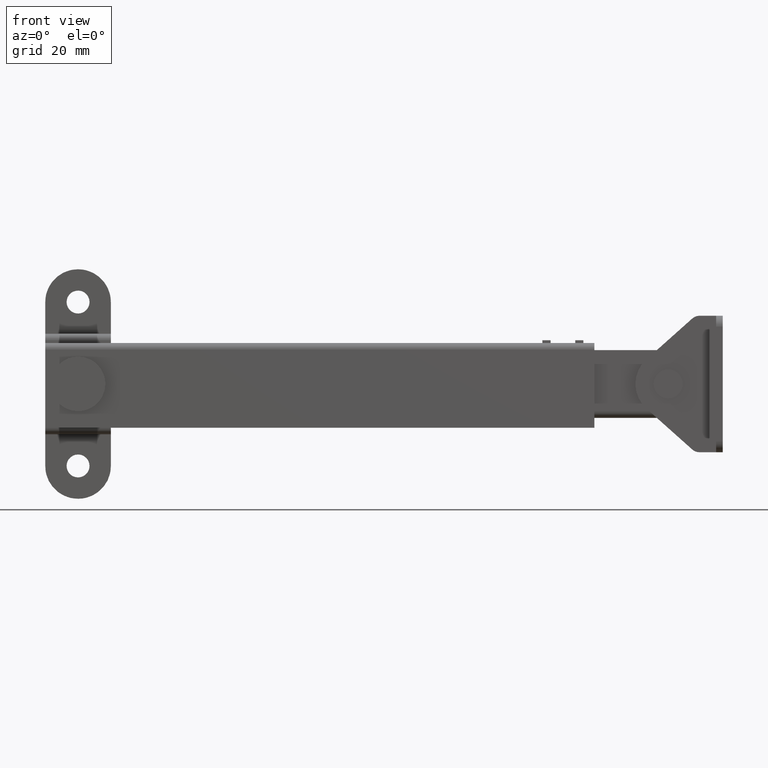
[diagram: clean part render]
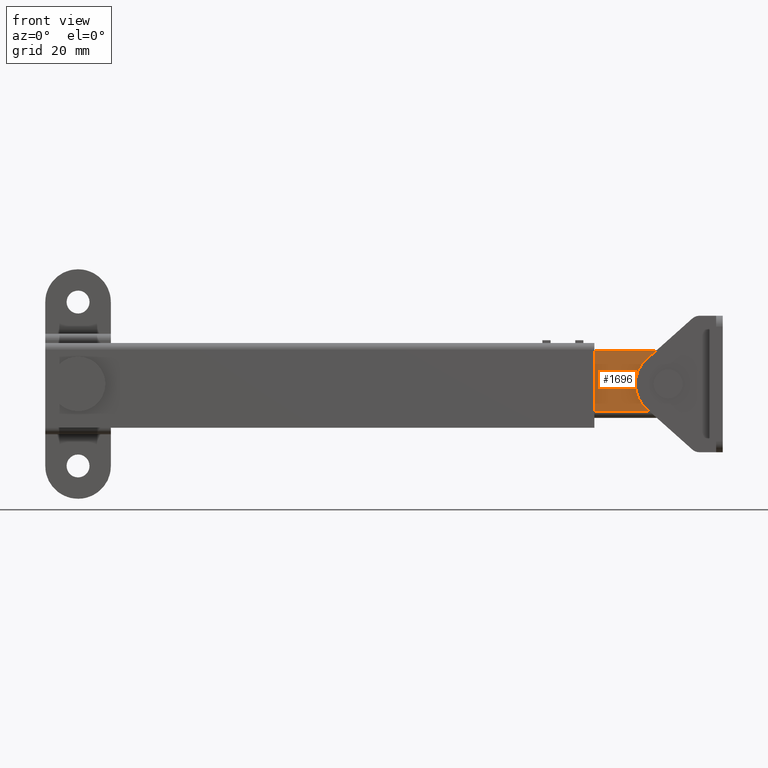
[diagram: same view with one face highlighted and labeled with its STEP entity id]
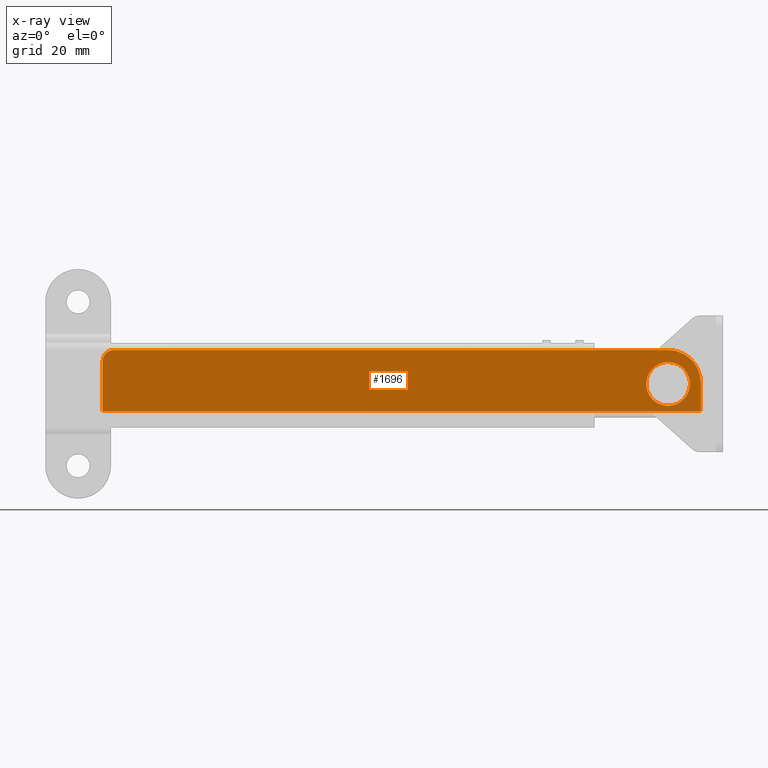
[diagram: x-ray of the same camera — body ghosted, the highlighted face saturated]
A machine part, front view. The second image highlights one B-rep face of the part: STEP entity #1696.
The next image is the same camera in x-ray: the body ghosted, the highlighted face saturated — about 0% of this face is hidden behind the body in this view.
In plain terms, the highlighted face is a freeform B-spline surface patch.
Its self-contained STEP definition (entity closure, byte-faithful):
#1172=CARTESIAN_POINT('',(105.196363191707410,-14.449999999497891,-2.853001444244294));
#1173=VERTEX_POINT('',#1172);
#1179=CARTESIAN_POINT('',(107.999999999930200,-14.449999999496340,-4.000000000000147));
#1180=VERTEX_POINT('',#1179);
#1181=CARTESIAN_POINT('',(107.999999999930200,-14.449999999496340,-4.000000000000147));
#1182=CARTESIAN_POINT('',(107.498296084908900,-14.449999999496340,-4.000496340017977));
#1183=CARTESIAN_POINT('',(106.819075022954390,-14.449999999496519,-3.870467968756956));
#1184=CARTESIAN_POINT('',(105.881379017804600,-14.449999999497109,-3.425499268076557));
#1185=CARTESIAN_POINT('',(105.450185609992200,-14.449999999497560,-3.102612188243431));
#1186=CARTESIAN_POINT('',(105.196363191707410,-14.449999999497891,-2.853001444244294));
#1187=B_SPLINE_CURVE_WITH_KNOTS('',3,(#1181,#1182,#1183,#1184,#1185,#1186),.UNSPECIFIED.,.F.,.U.,(4,1,1,4),(0.000000043175039,1.504836897816030,2.038774846942117,3.106705034949995),.UNSPECIFIED.);
#1188=EDGE_CURVE('',#1180,#1173,#1187,.T.);
#1190=CARTESIAN_POINT('',(111.999999999930100,-14.449999999501760,-0.000001703618977));
#1191=VERTEX_POINT('',#1190);
#1192=CARTESIAN_POINT('',(111.999999999930100,-14.449999999501760,-0.000001703618977));
#1193=CARTESIAN_POINT('',(112.000316804414690,-14.449999999501120,-0.474558039970925));
#1194=CARTESIAN_POINT('',(111.864503673738000,-14.449999999500079,-1.226991903442209));
#1195=CARTESIAN_POINT('',(111.455091981774000,-14.449999999499010,-2.052368853477777));
#1196=CARTESIAN_POINT('',(110.946293289229700,-14.449999999498001,-2.756660197472446));
#1197=CARTESIAN_POINT('',(110.213879917131810,-14.449999999497170,-3.404338692033086));
#1198=CARTESIAN_POINT('',(109.128953474489900,-14.449999999496480,-3.893018353150987));
#1199=CARTESIAN_POINT('',(108.376343576523200,-14.449999999496340,-4.000119231410559));
#1200=CARTESIAN_POINT('',(107.999999999930200,-14.449999999496340,-4.000000000000147));
#1201=B_SPLINE_CURVE_WITH_KNOTS('',3,(#1192,#1193,#1194,#1195,#1196,#1197,#1198,#1199,#1200),.UNSPECIFIED.,.F.,.U.,(4,1,1,1,1,1,4),(0.000000170135317,1.423541254048411,2.258057103421657,2.748937520032123,4.025167614685776,5.154212572191438,6.283223771324277),.UNSPECIFIED.);
#1202=EDGE_CURVE('',#1191,#1180,#1201,.T.);
#1204=CARTESIAN_POINT('',(110.803636808153000,-14.449999999505630,2.853001444244524));
#1205=VERTEX_POINT('',#1204);
#1206=CARTESIAN_POINT('',(110.803636808153000,-14.449999999505630,2.853001444244524));
#1207=CARTESIAN_POINT('',(111.027856178113100,-14.449999999505330,2.632705722643657));
#1208=CARTESIAN_POINT('',(111.486748500597400,-14.449999999504559,2.061022494549208));
#1209=CARTESIAN_POINT('',(111.907239514906390,-14.449999999503220,1.075410280752601));
#1210=CARTESIAN_POINT('',(112.000048903088100,-14.449999999502239,0.330879112631419));
#1211=CARTESIAN_POINT('',(111.999999999930100,-14.449999999501760,-0.000001703618977));
#1212=B_SPLINE_CURVE_WITH_KNOTS('',3,(#1206,#1207,#1208,#1209,#1210,#1211),.UNSPECIFIED.,.F.,.U.,(4,1,1,4),(0.000000042808867,0.943031683327311,2.183852043263301,3.176521080308818),.UNSPECIFIED.);
#1213=EDGE_CURVE('',#1205,#1191,#1212,.T.);
#1247=CARTESIAN_POINT('',(107.999999999930200,-14.449999999507179,4.000000000000374));
#1248=VERTEX_POINT('',#1247);
#1249=CARTESIAN_POINT('',(107.999999999930200,-14.449999999507179,4.000000000000374));
#1250=CARTESIAN_POINT('',(108.323618071450700,-14.449999999507160,4.000076979049285));
#1251=CARTESIAN_POINT('',(108.906080994246390,-14.449999999507130,3.928905073781588));
#1252=CARTESIAN_POINT('',(109.887091987954700,-14.449999999506581,3.582197085122690));
#1253=CARTESIAN_POINT('',(110.480677468396190,-14.449999999506110,3.170813041192203));
#1254=CARTESIAN_POINT('',(110.803636808153000,-14.449999999505630,2.853001444244524));
#1255=B_SPLINE_CURVE_WITH_KNOTS('',3,(#1249,#1250,#1251,#1252,#1253,#1254),.UNSPECIFIED.,.F.,.U.,(4,1,1,4),(0.000000043172531,0.970845521877172,1.747520898320729,3.106705034949996),.UNSPECIFIED.);
#1256=EDGE_CURVE('',#1248,#1205,#1255,.T.);
#1258=CARTESIAN_POINT('',(103.999999999930300,-14.449999999501760,0.000001703619251));
#1259=VERTEX_POINT('',#1258);
#1260=CARTESIAN_POINT('',(103.999999999930300,-14.449999999501760,0.000001703619251));
#1261=CARTESIAN_POINT('',(103.999333975771710,-14.449999999502520,0.540079800246489));
#1262=CARTESIAN_POINT('',(104.181770641655110,-14.449999999503680,1.423111116007807));
#1263=CARTESIAN_POINT('',(104.752791649732900,-14.449999999504939,2.388870819783847));
#1264=CARTESIAN_POINT('',(105.356383383399200,-14.449999999506050,3.038612143287027));
#1265=CARTESIAN_POINT('',(106.013469328763700,-14.449999999506019,3.507465553294253));
#1266=CARTESIAN_POINT('',(106.920196378189900,-14.449999999507360,3.896128404124013));
#1267=CARTESIAN_POINT('',(107.590908792156100,-14.449999999507160,4.000214902254592));
#1268=CARTESIAN_POINT('',(107.999999999930200,-14.449999999507179,4.000000000000374));
#1269=B_SPLINE_CURVE_WITH_KNOTS('',3,(#1260,#1261,#1262,#1263,#1264,#1265,#1266,#1267,#1268),.UNSPECIFIED.,.F.,.U.,(4,1,1,1,1,1,4),(0.000000170153574,1.619894116990479,2.650763513998174,3.337944723747501,4.270623168007296,5.056035134627368,6.283223771324263),.UNSPECIFIED.);
#1270=EDGE_CURVE('',#1259,#1248,#1269,.T.);
#1272=CARTESIAN_POINT('',(105.196363191707410,-14.449999999497891,-2.853001444244294));
#1273=CARTESIAN_POINT('',(104.830089657138200,-14.449999999498370,-2.493849734017250));
#1274=CARTESIAN_POINT('',(104.382507334676600,-14.449999999499321,-1.840528118537357));
#1275=CARTESIAN_POINT('',(104.057836451901300,-14.449999999500561,-0.827181075092012));
#1276=CARTESIAN_POINT('',(103.999953591578300,-14.449999999501401,-0.281254605542615));
#1277=CARTESIAN_POINT('',(103.999999999930300,-14.449999999501760,0.000001703619251));
#1278=B_SPLINE_CURVE_WITH_KNOTS('',3,(#1272,#1273,#1274,#1275,#1276,#1277),.UNSPECIFIED.,.F.,.U.,(4,1,1,4),(0.000000042818590,1.538652569119689,2.332757361640450,3.176521080308868),.UNSPECIFIED.);
#1279=EDGE_CURVE('',#1173,#1259,#1278,.T.);
#1299=CARTESIAN_POINT('',(6.499999999940890,-14.449999999510160,6.199999999998200));
#1300=VERTEX_POINT('',#1299);
#1301=CARTESIAN_POINT('',(4.499999999940885,-14.449999999507460,4.199999999998200));
#1302=VERTEX_POINT('',#1301);
#1303=CARTESIAN_POINT('',(6.499999999940890,-14.449999999510160,6.199999999998200));
#1304=CARTESIAN_POINT('',(6.270908942925523,-14.449999999510130,6.200149454321523));
#1305=CARTESIAN_POINT('',(5.829206160747865,-14.449999999510149,6.123284406070058));
#1306=CARTESIAN_POINT('',(5.321096731465938,-14.449999999509590,5.843626110194285));
#1307=CARTESIAN_POINT('',(4.963917504281107,-14.449999999509270,5.503430430058159));
#1308=CARTESIAN_POINT('',(4.731072391788466,-14.449999999508821,5.164079235498726));
#1309=CARTESIAN_POINT('',(4.548605743262941,-14.449999999508099,4.723551233257578));
#1310=CARTESIAN_POINT('',(4.499907193497166,-14.449999999507771,4.396360961002171));
#1311=CARTESIAN_POINT('',(4.499999999940885,-14.449999999507460,4.199999999998200));
#1312=B_SPLINE_CURVE_WITH_KNOTS('',3,(#1303,#1304,#1305,#1306,#1307,#1308,#1309,#1310,#1311),.UNSPECIFIED.,.F.,.U.,(4,1,1,1,1,1,4),(0.000000245836771,0.687238665443183,1.325407448729435,1.718067199564848,2.159897377573079,2.552610053511601,3.141671488691252),.UNSPECIFIED.);
#1313=EDGE_CURVE('',#1300,#1302,#1312,.T.);
#1414=CARTESIAN_POINT('',(113.999999999941000,-14.449999999502040,0.199999999998198));
#1415=VERTEX_POINT('',#1414);
#1416=CARTESIAN_POINT('',(107.999999999941000,-14.449999999510160,6.199999999998200));
#1417=VERTEX_POINT('',#1416);
#1418=CARTESIAN_POINT('',(113.999999999941000,-14.449999999502040,0.199999999998198));
#1419=CARTESIAN_POINT('',(114.000488460056700,-14.449999999503010,0.887296909831298));
#1420=CARTESIAN_POINT('',(113.803791692736000,-14.449999999504470,2.015936758786974));
#1421=CARTESIAN_POINT('',(113.078053797496690,-14.449999999506600,3.502816612716230));
#1422=CARTESIAN_POINT('',(112.255583687814000,-14.449999999507661,4.492526673734305));
#1423=CARTESIAN_POINT('',(111.193100714889100,-14.449999999509490,5.332246404009626));
#1424=CARTESIAN_POINT('',(109.840578777223100,-14.449999999509130,6.002777074011110));
#1425=CARTESIAN_POINT('',(108.662720639070200,-14.449999999510490,6.200419004613055));
#1426=CARTESIAN_POINT('',(107.999999999941000,-14.449999999510160,6.199999999998200));
#1427=B_SPLINE_CURVE_WITH_KNOTS('',3,(#1418,#1419,#1420,#1421,#1422,#1423,#1424,#1425,#1426),.UNSPECIFIED.,.F.,.U.,(4,1,1,1,1,1,4),(0.000000162445131,2.061675973699371,3.387074130938587,4.933297660457997,5.890513105093994,7.436788808039752,9.424837097261246),.UNSPECIFIED.);
#1428=EDGE_CURVE('',#1415,#1417,#1427,.T.);
#1553=CARTESIAN_POINT('',(113.999999999941000,-14.449999999495001,-4.999999999962550));
#1554=VERTEX_POINT('',#1553);
#1555=CARTESIAN_POINT('',(113.999999999941000,-14.449999999495001,-4.999999999962550));
#1556=CARTESIAN_POINT('',(113.999999999941000,-14.449999999502040,0.199999999998198));
#1557=QUASI_UNIFORM_CURVE('',1,(#1555,#1556),.UNSPECIFIED.,.F.,.U.);
#1558=EDGE_CURVE('',#1554,#1415,#1557,.T.);
#1633=CARTESIAN_POINT('',(4.499999999940885,-14.449999999495001,-4.999999999962550));
#1634=VERTEX_POINT('',#1633);
#1646=CARTESIAN_POINT('',(4.499999999940885,-14.449999999495001,-4.999999999962550));
#1647=CARTESIAN_POINT('',(4.499999999940885,-14.449999999507460,4.199999999998200));
#1648=QUASI_UNIFORM_CURVE('',1,(#1646,#1647),.UNSPECIFIED.,.F.,.U.);
#1649=EDGE_CURVE('',#1634,#1302,#1648,.T.);
#1667=CARTESIAN_POINT('',(-0.969524787826868,-14.449999999494240,-5.559439978252818));
#1668=CARTESIAN_POINT('',(-0.969524787826868,-14.449999999510940,6.759440278695874));
#1669=CARTESIAN_POINT('',(119.469527724727700,-14.449999999494240,-5.559439978252818));
#1670=CARTESIAN_POINT('',(119.469527724727700,-14.449999999510940,6.759440278695874));
#1671=B_SPLINE_SURFACE_WITH_KNOTS('',1,1,((#1667,#1669),(#1668,#1670)),.UNSPECIFIED.,.F.,.F.,.U.,(2,2),(2,2),(0.0,12.318880256948690),(0.0,120.439052512554500),.UNSPECIFIED.);
#1672=CARTESIAN_POINT('',(6.499999999940890,-14.449999999510160,6.199999999998200));
#1673=CARTESIAN_POINT('',(107.999999999941000,-14.449999999510160,6.199999999998200));
#1674=QUASI_UNIFORM_CURVE('',1,(#1672,#1673),.UNSPECIFIED.,.F.,.U.);
#1675=EDGE_CURVE('',#1300,#1417,#1674,.T.);
#1676=ORIENTED_EDGE('',*,*,#1675,.F.);
#1677=ORIENTED_EDGE('',*,*,#1313,.T.);
#1678=ORIENTED_EDGE('',*,*,#1649,.F.);
#1679=CARTESIAN_POINT('',(4.499999999940885,-14.449999999495001,-4.999999999962550));
#1680=CARTESIAN_POINT('',(113.999999999941000,-14.449999999495001,-4.999999999962550));
#1681=QUASI_UNIFORM_CURVE('',1,(#1679,#1680),.UNSPECIFIED.,.F.,.U.);
#1682=EDGE_CURVE('',#1634,#1554,#1681,.T.);
#1683=ORIENTED_EDGE('',*,*,#1682,.T.);
#1684=ORIENTED_EDGE('',*,*,#1558,.T.);
#1685=ORIENTED_EDGE('',*,*,#1428,.T.);
#1686=EDGE_LOOP('',(#1676,#1677,#1678,#1683,#1684,#1685));
#1687=FACE_OUTER_BOUND('',#1686,.T.);
#1688=ORIENTED_EDGE('',*,*,#1202,.T.);
#1689=ORIENTED_EDGE('',*,*,#1188,.T.);
#1690=ORIENTED_EDGE('',*,*,#1279,.T.);
#1691=ORIENTED_EDGE('',*,*,#1270,.T.);
#1692=ORIENTED_EDGE('',*,*,#1256,.T.);
#1693=ORIENTED_EDGE('',*,*,#1213,.T.);
#1694=EDGE_LOOP('',(#1688,#1689,#1690,#1691,#1692,#1693));
#1695=FACE_BOUND('',#1694,.T.);
#1696=ADVANCED_FACE('',(#1687,#1695),#1671,.F.);